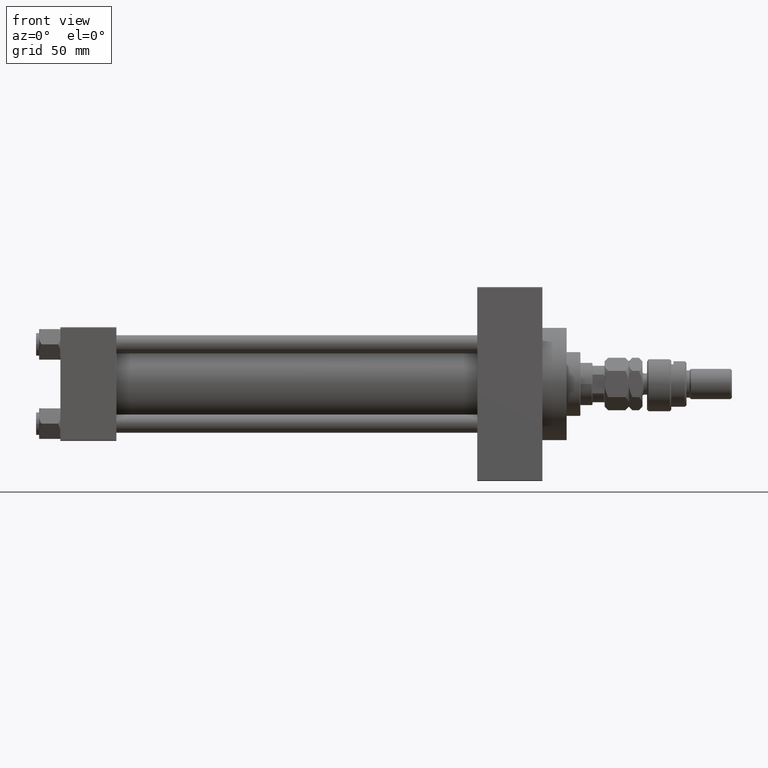
[diagram: clean part render]
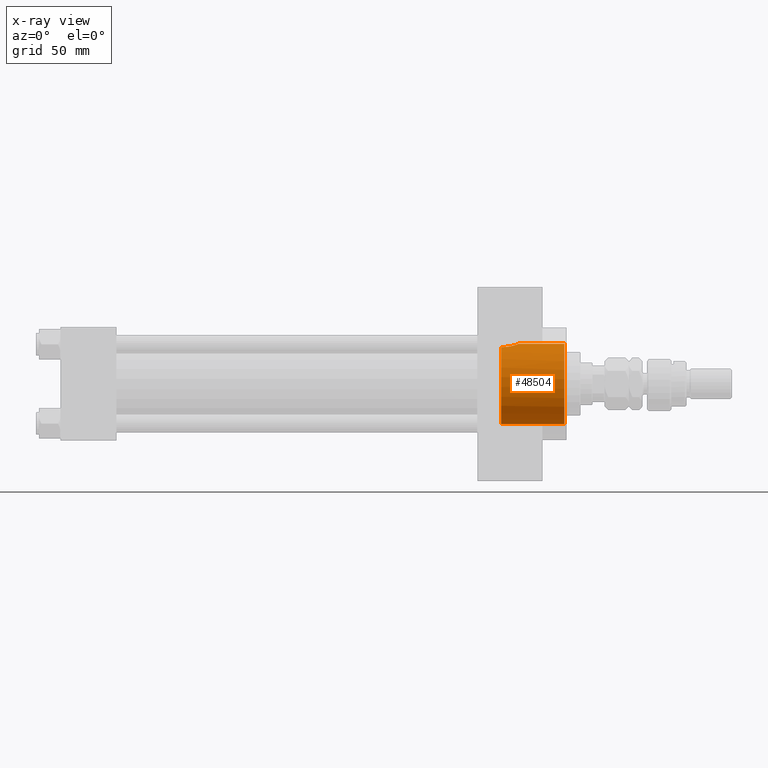
[diagram: x-ray — body ghosted, one internal face saturated and labeled with its STEP entity id]
A machine part, front view, then the same camera in x-ray: the body is ghosted and one INTERNAL B-rep face — a face not visible from any outside direction — is saturated and labeled: STEP entity #48504.
In plain terms, the highlighted cylindrical surface (partial cylindrical patch) has radius 26.5 mm, axis along (1, 0, 0).
Its self-contained STEP definition (entity closure, byte-faithful):
#536 = VERTEX_POINT ( 'NONE', #48134 ) ;
#672 = VERTEX_POINT ( 'NONE', #19932 ) ;
#760 = VERTEX_POINT ( 'NONE', #28289 ) ;
#2502 = FACE_OUTER_BOUND ( 'NONE', #13620, .T. ) ;
#2569 = CARTESIAN_POINT ( 'NONE',  ( 298.6874981071936190, -8.077221093107597838, 25.24030799844106099 ) ) ;
#2827 = CARTESIAN_POINT ( 'NONE',  ( 300.6508763872860186, -5.926808359427496953, 25.83050513016100069 ) ) ;
#4723 = EDGE_CURVE ( 'NONE', #760, #672, #45949, .T. ) ;
#5078 = EDGE_CURVE ( 'NONE', #760, #536, #5724, .T. ) ;
#5724 = B_SPLINE_CURVE_WITH_KNOTS ( 'NONE', 3,
 ( #30252, #44083, #18074, #32630, #10945, #45011, #45763, #47895, #28580, #9252, #2827, #10185, #33826, #2569, #25694, #33565, #49324, #8400, #16042, #43222, #27482, #38672, #23168, #15021, #38925, #23920 ),
 .UNSPECIFIED., .F., .F.,
 ( 4, 2, 2, 2, 2, 2, 2, 2, 2, 2, 2, 2, 4 ),
 ( 0.01781170071191076620, 0.02003745927526340981, 0.02115033855693971079, 0.02226321783861601525, 0.02337609712029231623, 0.02448897640196862069, 0.02671473496532131980, 0.02782761424699772834, 0.02894049352867413688, 0.03005337281035054542, 0.03116625209202695396, 0.03339201065537961144, 0.03561776921873227586 ),
 .UNSPECIFIED. ) ;
#5893 = CARTESIAN_POINT ( 'NONE',  ( 290.7399999999999523, 0.000000000000000000, -26.50000000000000355 ) ) ;
#8400 = CARTESIAN_POINT ( 'NONE',  ( 296.8603660912149280, -9.291949300782571086, 24.81826977973610582 ) ) ;
#9252 = CARTESIAN_POINT ( 'NONE',  ( 300.8553297434206115, -5.616857363200519870, 25.89992295911057241 ) ) ;
#9619 = CARTESIAN_POINT ( 'NONE',  ( 290.7399999999999523, 0.000000000000000000, 0.000000000000000000 ) ) ;
#10185 = CARTESIAN_POINT ( 'NONE',  ( 299.9981355541606263, -6.811571481472472378, 25.61680511670813942 ) ) ;
#10201 = LINE ( 'NONE', #5893, #24352 ) ;
#10371 = CYLINDRICAL_SURFACE ( 'NONE', #39378, 26.50000000000000355 ) ;
#10945 = CARTESIAN_POINT ( 'NONE',  ( 302.0665133812162821, -2.938253791439191964, 26.33899517628734088 ) ) ;
#11254 = EDGE_CURVE ( 'NONE', #536, #26023, #46570, .T. ) ;
#11520 = AXIS2_PLACEMENT_3D ( 'NONE', #32829, #25698, #49079 ) ;
#12969 = CARTESIAN_POINT ( 'NONE',  ( 290.7399999999999523, 0.000000000000000000, 0.000000000000000000 ) ) ;
#13620 = EDGE_LOOP ( 'NONE', ( #18680, #32564, #33236, #16979, #46711 ) ) ;
#14779 = VECTOR ( 'NONE', #15717, 1000.000000000000000 ) ;
#15021 = CARTESIAN_POINT ( 'NONE',  ( 292.2451057705675339, -10.50334255171940434, 24.32972513250578217 ) ) ;
#15717 = DIRECTION ( 'NONE',  ( 1.000000000000000000, -0.000000000000000000, -0.000000000000000000 ) ) ;
#16042 = CARTESIAN_POINT ( 'NONE',  ( 296.5335921408432114, -9.455792512420352125, 24.75606841526505519 ) ) ;
#16979 = ORIENTED_EDGE ( 'NONE', *, *, #22020, .F. ) ;
#17180 = CIRCLE ( 'NONE', #11520, 26.50000000000000355 ) ;
#18074 = CARTESIAN_POINT ( 'NONE',  ( 302.4011065554138327, -1.483758503940585394, 26.46850309434598714 ) ) ;
#18587 = DIRECTION ( 'NONE',  ( 1.000000000000000000, -0.000000000000000000, -0.000000000000000000 ) ) ;
#18680 = ORIENTED_EDGE ( 'NONE', *, *, #5078, .F. ) ;
#19932 = CARTESIAN_POINT ( 'NONE',  ( 332.4999999999999432, 3.245314017740486554E-15, 26.50000000000000355 ) ) ;
#22020 = EDGE_CURVE ( 'NONE', #26023, #44795, #10201, .T. ) ;
#23088 = CARTESIAN_POINT ( 'NONE',  ( 290.7399999999999523, 3.245314017740486554E-15, 26.50000000000000355 ) ) ;
#23168 = CARTESIAN_POINT ( 'NONE',  ( 293.7216423275558554, -10.36418010715238402, 24.38933169417624924 ) ) ;
#23920 = CARTESIAN_POINT ( 'NONE',  ( 290.7399999999999523, -10.40398000767013542, 24.37226292324945831 ) ) ;
#24352 = VECTOR ( 'NONE', #18587, 1000.000000000000000 ) ;
#25694 = CARTESIAN_POINT ( 'NONE',  ( 298.3983008714430412, -8.308216825530779559, 25.16494175890554530 ) ) ;
#25698 = DIRECTION ( 'NONE',  ( 1.000000000000000000, 0.000000000000000000, 0.000000000000000000 ) ) ;
#26023 = VERTEX_POINT ( 'NONE', #41583 ) ;
#27482 = CARTESIAN_POINT ( 'NONE',  ( 295.5115735695663943, -9.881194972351266870, 24.58915736193082324 ) ) ;
#28289 = CARTESIAN_POINT ( 'NONE',  ( 302.4800000000001319, 1.369086566889278633E-14, 26.50000000000006750 ) ) ;
#28580 = CARTESIAN_POINT ( 'NONE',  ( 301.2276638786152034, -4.981583166679977026, 26.02957788900645397 ) ) ;
#28955 = DIRECTION ( 'NONE',  ( 0.000000000000000000, 0.000000000000000000, -1.000000000000000000 ) ) ;
#29601 = EDGE_CURVE ( 'NONE', #672, #44795, #17180, .T. ) ;
#30252 = CARTESIAN_POINT ( 'NONE',  ( 302.4800000000001319, 1.369086566889278633E-14, 26.50000000000006750 ) ) ;
#30331 = AXIS2_PLACEMENT_3D ( 'NONE', #12969, #39915, #28955 ) ;
#32564 = ORIENTED_EDGE ( 'NONE', *, *, #4723, .T. ) ;
#32630 = CARTESIAN_POINT ( 'NONE',  ( 302.1654842721632690, -2.575241489874374512, 26.37710048711162969 ) ) ;
#32829 = CARTESIAN_POINT ( 'NONE',  ( 332.4999999999999432, 0.000000000000000000, 0.000000000000000000 ) ) ;
#32973 = CARTESIAN_POINT ( 'NONE',  ( 332.4999999999999432, 0.000000000000000000, -26.50000000000000355 ) ) ;
#33236 = ORIENTED_EDGE ( 'NONE', *, *, #29601, .T. ) ;
#33565 = CARTESIAN_POINT ( 'NONE',  ( 297.8022832347252233, -8.734885810677026186, 25.02004257437571866 ) ) ;
#33826 = CARTESIAN_POINT ( 'NONE',  ( 299.5076201536011240, -7.348534936426574404, 25.46581292754182968 ) ) ;
#36592 = DIRECTION ( 'NONE',  ( 1.000000000000000000, -0.000000000000000000, -0.000000000000000000 ) ) ;
#38672 = CARTESIAN_POINT ( 'NONE',  ( 294.4459359432478323, -10.21777125531390773, 24.45211332338677579 ) ) ;
#38925 = CARTESIAN_POINT ( 'NONE',  ( 291.4868983507926714, -10.49443499905853372, 24.33364968799253347 ) ) ;
#39378 = AXIS2_PLACEMENT_3D ( 'NONE', #9619, #36592, #40634 ) ;
#39915 = DIRECTION ( 'NONE',  ( 1.000000000000000000, 0.000000000000000000, 0.000000000000000000 ) ) ;
#40634 = DIRECTION ( 'NONE',  ( 0.000000000000000000, 0.000000000000000000, -1.000000000000000000 ) ) ;
#41583 = CARTESIAN_POINT ( 'NONE',  ( 290.7399999999999523, 0.000000000000000000, -26.50000000000000355 ) ) ;
#43222 = CARTESIAN_POINT ( 'NONE',  ( 295.8600678267363264, -9.750145953289933942, 24.64162310621548357 ) ) ;
#44083 = CARTESIAN_POINT ( 'NONE',  ( 302.4799999999999613, -0.7466733969459847797, 26.50000000000001776 ) ) ;
#44795 = VERTEX_POINT ( 'NONE', #32973 ) ;
#45011 = CARTESIAN_POINT ( 'NONE',  ( 301.8335546017132174, -3.642695553053319824, 26.25084325021121501 ) ) ;
#45763 = CARTESIAN_POINT ( 'NONE',  ( 301.6993435614955956, -3.985990130492278460, 26.20070574291653998 ) ) ;
#45949 = LINE ( 'NONE', #23088, #14779 ) ;
#46570 = CIRCLE ( 'NONE', #30331, 26.50000000000000355 ) ;
#46711 = ORIENTED_EDGE ( 'NONE', *, *, #11254, .F. ) ;
#47895 = CARTESIAN_POINT ( 'NONE',  ( 301.3963988635402984, -4.655434592126336035, 26.09007526830299284 ) ) ;
#48134 = CARTESIAN_POINT ( 'NONE',  ( 290.7399999999999523, -10.40398000767013542, 24.37226292324945831 ) ) ;
#48504 = ADVANCED_FACE ( 'NONE', ( #2502 ), #10371, .F. ) ;
#49079 = DIRECTION ( 'NONE',  ( 0.000000000000000000, 0.000000000000000000, -1.000000000000000000 ) ) ;
#49324 = CARTESIAN_POINT ( 'NONE',  ( 297.4947120380321621, -8.931495953537172738, 24.95025484238638569 ) ) ;